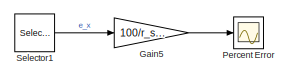
[diagram: root canvas - part 1/2, top right region]
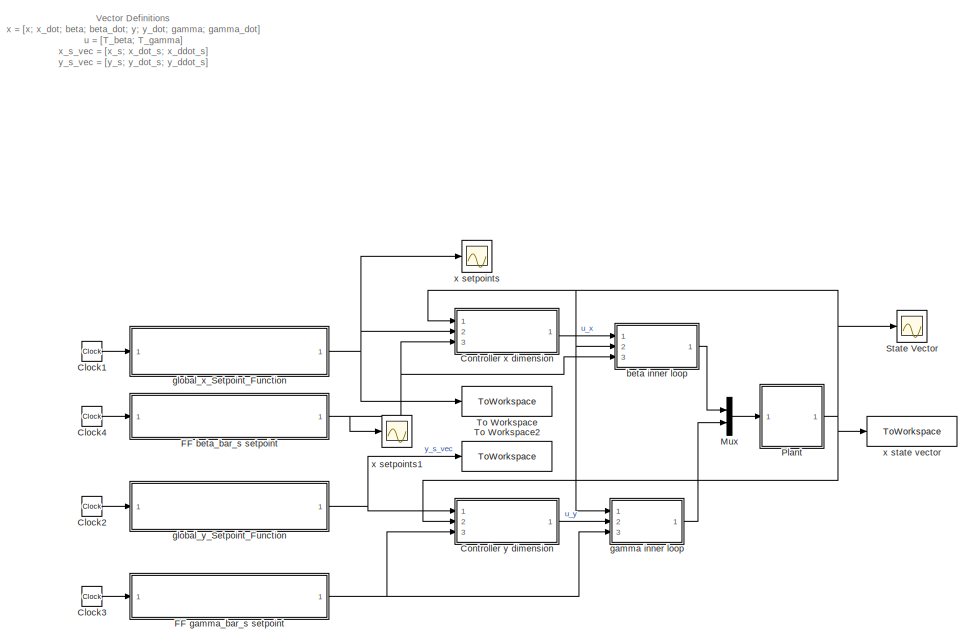
[diagram: root canvas - part 2/2, bottom left region]
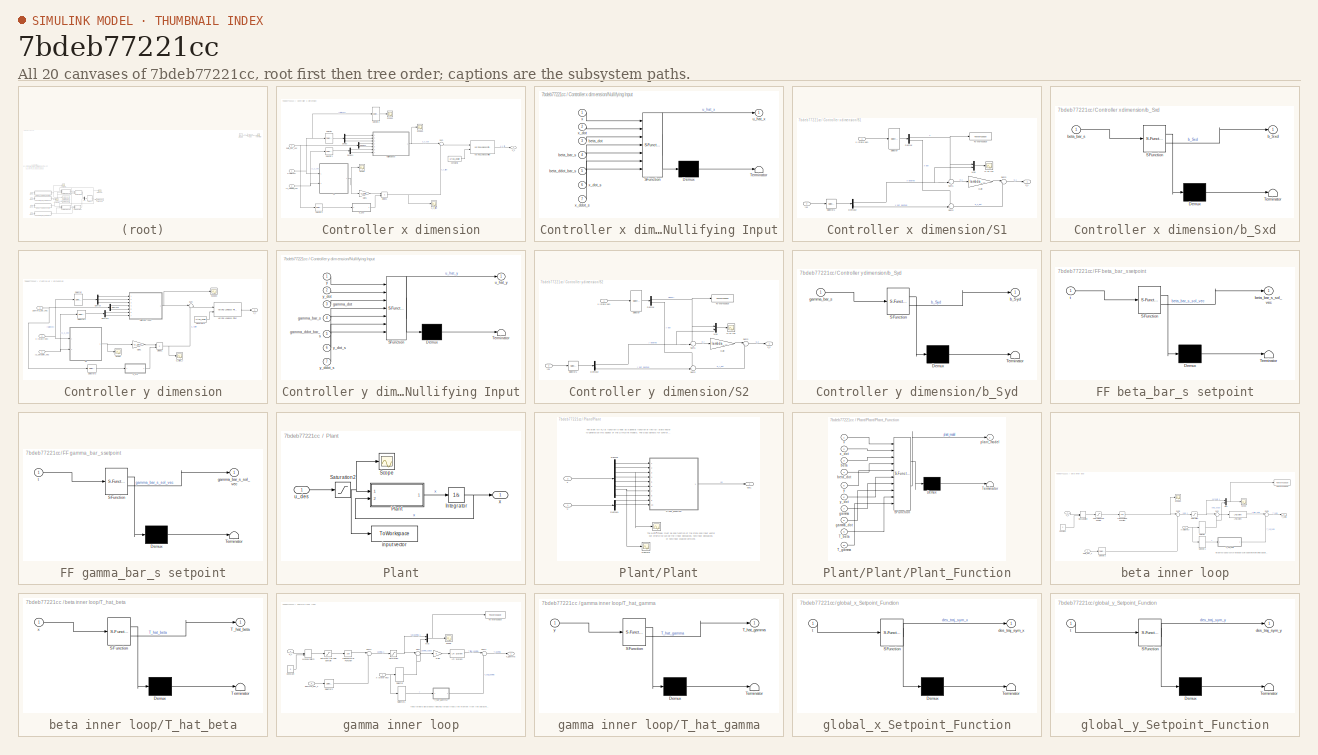
[diagram: thumbnail index - all 20 canvases of the model, root first then tree order]
MODEL slx_7bdeb77221cc
KIND model
CONFIG AbsTol = auto
CONFIG EnableMultiTasking = off
CONFIG FixedStep = auto
CONFIG MaxStep = auto
CONFIG MinStep = auto
CONFIG RelTol = 1e-9
CONFIG SampleTimeConstraint = Unconstrained
CONFIG SolverName = VariableStepAuto
CONFIG StartTime = 0.0
CONFIG StopTime = t_sim
BLOCK [Clock] Clock1
BLOCK [Clock] Clock2
BLOCK [Clock] Clock3
BLOCK [Clock] Clock4
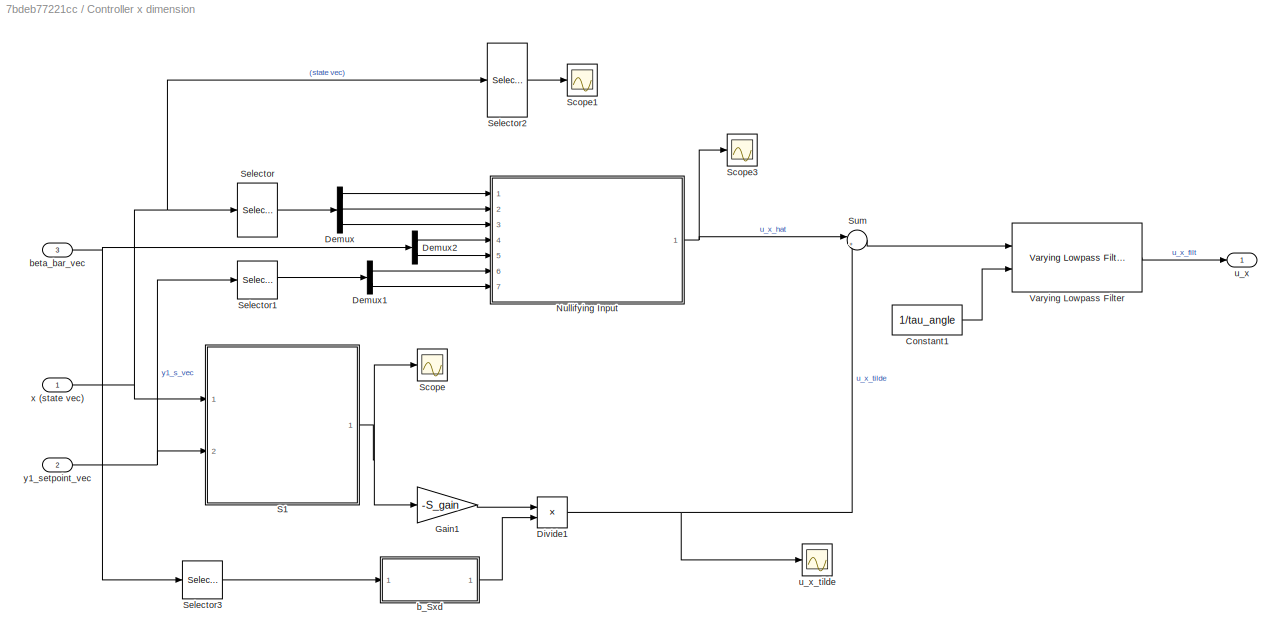
BLOCK [SubSystem] Controller x dimension
  Ports = [3, 1]
  RequestExecContextInheritance = off
BLOCK [Constant] Controller x dimension/Constant1
  Value = 1/tau_angle
BLOCK [Demux] Controller x dimension/Demux
  Outputs = 3
  Ports = [1, 3]
BLOCK [Demux] Controller x dimension/Demux1
  Outputs = 2
  Ports = [1, 2]
BLOCK [Demux] Controller x dimension/Demux2
  Outputs = 2
  Ports = [1, 2]
BLOCK [Product] Controller x dimension/Divide1
  Inputs = */
  Ports = [2, 1]
BLOCK [Gain] Controller x dimension/Gain1
  Gain = -S_gain
BLOCK [SubSystem] Controller x dimension/Nullifying Input
  ErrorFcn = Stateflow.Translate.translate
  PermitHierarchicalResolution = ExplicitOnly
  Ports = [7, 1]
  RequestExecContextInheritance = off
  SFBlockType = MATLAB Function
  TreatAsAtomicUnit = on
BLOCK [Demux] Controller x dimension/Nullifying Input/ Demux 
  Outputs = 1
  Ports = [1, 1]
BLOCK [S-Function] Controller x dimension/Nullifying Input/ SFunction 
  EnableBusSupport = on
  FunctionName = sf_sfun
  PortCounts = [7 2]
  Ports = [7, 2]
  SFcnIsStateOwnerBlock = off
  SFunctionDeploymentMode = off
  Tag = Stateflow S-Function 9
BLOCK [Terminator] Controller x dimension/Nullifying Input/ Terminator 
BLOCK [Inport] Controller x dimension/Nullifying Input/beta_bar_s
  Port = 4
BLOCK [Inport] Controller x dimension/Nullifying Input/beta_ddot_bar_s
  Port = 5
BLOCK [Inport] Controller x dimension/Nullifying Input/beta_dot
  Port = 3
BLOCK [Outport] Controller x dimension/Nullifying Input/u_hat_x
BLOCK [Inport] Controller x dimension/Nullifying Input/x
BLOCK [Inport] Controller x dimension/Nullifying Input/x_ddot_s
  Port = 7
BLOCK [Inport] Controller x dimension/Nullifying Input/x_dot
  Port = 2
BLOCK [Inport] Controller x dimension/Nullifying Input/x_dot_s
  Port = 6
BLOCK [SubSystem] Controller x dimension/S1
  Ports = [2, 1]
  RequestExecContextInheritance = off
BLOCK [Demux] Controller x dimension/S1/Demux
  Outputs = 2
  Ports = [1, 2]
BLOCK [Demux] Controller x dimension/S1/Demux2
  Outputs = 2
  Ports = [1, 2]
BLOCK [Gain] Controller x dimension/S1/Gain
  Gain = lambda_x_num
BLOCK [Mux] Controller x dimension/S1/Mux
  DisplayOption = bar
  Inputs = 2
  Ports = [2, 1]
BLOCK [Outport] Controller x dimension/S1/S_1
BLOCK [Selector] Controller x dimension/S1/Selector
  IndexOptions = Index vector (dialog)
  Indices = [1 2]
  InputPortWidth = 8
  OutputSizes = 1
  Ports = [1, 1]
BLOCK [Selector] Controller x dimension/S1/Selector1
  IndexOptions = Index vector (dialog)
  Indices = [1 2]
  InputPortWidth = 3
  OutputSizes = 1
  Ports = [1, 1]
BLOCK [Sum] Controller x dimension/S1/Sum1
  Inputs = -+|
  Ports = [2, 1]
BLOCK [Sum] Controller x dimension/S1/Sum2
  Inputs = -+|
  Ports = [2, 1]
BLOCK [Sum] Controller x dimension/S1/Sum3
  Inputs = |++
  Ports = [2, 1]
BLOCK [ToWorkspace] Controller x dimension/S1/To Workspace
  FixptAsFi = on
  MaxDataPoints = inf
  Ports = [1]
  SampleTime = -1
  VariableName = y1
BLOCK [Inport] Controller x dimension/S1/x (state vec)
BLOCK [Scope] Controller x dimension/S1/y1 vs y1s
  Floating = off
  NumInputPorts = 1
  Ports = [1]
  ScopeSpecificationString = Simulink.scopes.TimeScopeBlockCfg('CurrentConfiguration', extmgr.ConfigurationSet(extmgr.Configuration('Core','General UI',true),extmgr.Configuration('Core','Source UI',true),extmgr.Configuration('Sources','WiredSimulink',true,'DataLoggingVariableName','ScopeData1'),extmgr.Configuration('Visuals','Time Domain',true,'SerializedDisplays',{struct('MinYLimReal','-15.40053','MaxYLimReal','2.1788','YLab...<+1462ch>
BLOCK [Inport] Controller x dimension/S1/y1s
  Port = 2
BLOCK [Scope] Controller x dimension/Scope
  Floating = off
  NumInputPorts = 1
  Ports = [1]
  ScopeSpecificationString = Simulink.scopes.TimeScopeBlockCfg('CurrentConfiguration', extmgr.ConfigurationSet(extmgr.Configuration('Core','General UI',true),extmgr.Configuration('Core','Source UI',true),extmgr.Configuration('Sources','WiredSimulink',true,'DataLoggingVariableName','ScopeData2'),extmgr.Configuration('Visuals','Time Domain',true,'SerializedDisplays',{struct('MinYLimReal','-0.10473','MaxYLimReal','0.06587','YLab...<+1473ch>
BLOCK [Scope] Controller x dimension/Scope1
  Floating = off
  NumInputPorts = 1
  Ports = [1]
  ScopeSpecificationString = Simulink.scopes.TimeScopeBlockCfg('CurrentConfiguration', extmgr.ConfigurationSet(extmgr.Configuration('Core','General UI',true),extmgr.Configuration('Core','Source UI',true),extmgr.Configuration('Sources','WiredSimulink',true,'DataLoggingVariableName','ScopeData3'),extmgr.Configuration('Visuals','Time Domain',true,'SerializedDisplays',{struct('MinYLimReal','-0.83404','MaxYLimReal','0.41624','YLab...<+1392ch>
BLOCK [Scope] Controller x dimension/Scope3
  Floating = off
  NumInputPorts = 1
  Ports = [1]
  ScopeSpecificationString = Simulink.scopes.TimeScopeBlockCfg('CurrentConfiguration', extmgr.ConfigurationSet(extmgr.Configuration('Core','General UI',true),extmgr.Configuration('Core','Source UI',true),extmgr.Configuration('Sources','WiredSimulink',true,'DataLoggingVariableName','ScopeData1'),extmgr.Configuration('Visuals','Time Domain',true,'SerializedDisplays',{struct('MinYLimReal','-21.74408','MaxYLimReal','2.55951','YLa...<+1464ch>
BLOCK [Selector] Controller x dimension/Selector
  IndexOptions = Index vector (dialog)
  Indices = [1 2 4]
  InputPortWidth = 8
  OutputSizes = 1
  Ports = [1, 1]
BLOCK [Selector] Controller x dimension/Selector1
  IndexOptions = Index vector (dialog)
  Indices = [2 3]
  InputPortWidth = 3
  OutputSizes = 1
  Ports = [1, 1]
BLOCK [Selector] Controller x dimension/Selector2
  IndexOptions = Index vector (dialog)
  Indices = [3]
  InputPortWidth = 8
  OutputSizes = 1
  Ports = [1, 1]
BLOCK [Selector] Controller x dimension/Selector3
  IndexOptions = Index vector (dialog)
  Indices = [1]
  InputPortWidth = 2
  OutputSizes = 1
  Ports = [1, 1]
BLOCK [Sum] Controller x dimension/Sum
  Inputs = |++
  Ports = [2, 1]
BLOCK [Reference] Controller x dimension/Varying Lowpass Filter  REF=cstblocks/Linear Parameter Varying/Varying Lowpass Filter
  Ports = [2, 1]
  SourceBlock = cstblocks/Linear Parameter Varying/Varying Lowpass Filter
  SourceProductBaseCode = CT
  SourceType = Varying Lowpass Filter
BLOCK [SubSystem] Controller x dimension/b_Sxd
  ErrorFcn = Stateflow.Translate.translate
  PermitHierarchicalResolution = ExplicitOnly
  Ports = [1, 1]
  RequestExecContextInheritance = off
  SFBlockType = MATLAB Function
  TreatAsAtomicUnit = on
BLOCK [Demux] Controller x dimension/b_Sxd/ Demux 
  Outputs = 1
  Ports = [1, 1]
BLOCK [S-Function] Controller x dimension/b_Sxd/ SFunction 
  EnableBusSupport = on
  FunctionName = sf_sfun
  PortCounts = [1 2]
  Ports = [1, 2]
  SFcnIsStateOwnerBlock = off
  SFunctionDeploymentMode = off
  Tag = Stateflow S-Function 13
BLOCK [Terminator] Controller x dimension/b_Sxd/ Terminator 
BLOCK [Outport] Controller x dimension/b_Sxd/b_Sxd
BLOCK [Inport] Controller x dimension/b_Sxd/beta_bar_s
BLOCK [Inport] Controller x dimension/beta_bar_vec
  Port = 3
BLOCK [Outport] Controller x dimension/u_x
BLOCK [Scope] Controller x dimension/u_x_tilde
  Floating = off
  NumInputPorts = 1
  Ports = [1]
  ScopeSpecificationString = Simulink.scopes.TimeScopeBlockCfg('CurrentConfiguration', extmgr.ConfigurationSet(extmgr.Configuration('Core','General UI',true),extmgr.Configuration('Core','Source UI',true),extmgr.Configuration('Sources','WiredSimulink',true,'DataLoggingVariableName','ScopeData1'),extmgr.Configuration('Visuals','Time Domain',true,'SerializedDisplays',{struct('MinYLimReal','-0.01495','MaxYLimReal','0.0094','YLabe...<+1465ch>
BLOCK [Inport] Controller x dimension/x (state vec)
BLOCK [Inport] Controller x dimension/y1_setpoint_vec
  Port = 2
BLOCK [SubSystem] Controller y dimension
  NameLocation = top
  Ports = [3, 1]
  RequestExecContextInheritance = off
BLOCK [Constant] Controller y dimension/Constant1
  Value = 1/tau_angle
BLOCK [Demux] Controller y dimension/Demux
  Outputs = 3
  Ports = [1, 3]
BLOCK [Demux] Controller y dimension/Demux1
  Outputs = 2
  Ports = [1, 2]
BLOCK [Demux] Controller y dimension/Demux2
  Outputs = 2
  Ports = [1, 2]
BLOCK [Product] Controller y dimension/Divide1
  Inputs = */
  Ports = [2, 1]
BLOCK [Gain] Controller y dimension/Gain1
  Gain = -S_gain
BLOCK [SubSystem] Controller y dimension/Nullifying Input
  ErrorFcn = Stateflow.Translate.translate
  PermitHierarchicalResolution = ExplicitOnly
  Ports = [7, 1]
  RequestExecContextInheritance = off
  SFBlockType = MATLAB Function
  TreatAsAtomicUnit = on
BLOCK [Demux] Controller y dimension/Nullifying Input/ Demux 
  Outputs = 1
  Ports = [1, 1]
BLOCK [S-Function] Controller y dimension/Nullifying Input/ SFunction 
  EnableBusSupport = on
  FunctionName = sf_sfun
  PortCounts = [7 2]
  Ports = [7, 2]
  SFcnIsStateOwnerBlock = off
  SFunctionDeploymentMode = off
  Tag = Stateflow S-Function 4
BLOCK [Terminator] Controller y dimension/Nullifying Input/ Terminator 
BLOCK [Inport] Controller y dimension/Nullifying Input/gamma_bar_s
  Port = 4
BLOCK [Inport] Controller y dimension/Nullifying Input/gamma_ddot_bar_s
  Port = 5
BLOCK [Inport] Controller y dimension/Nullifying Input/gamma_dot
  Port = 3
BLOCK [Outport] Controller y dimension/Nullifying Input/u_hat_y
BLOCK [Inport] Controller y dimension/Nullifying Input/y
BLOCK [Inport] Controller y dimension/Nullifying Input/y_ddot_s
  Port = 7
BLOCK [Inport] Controller y dimension/Nullifying Input/y_dot
  Port = 2
BLOCK [Inport] Controller y dimension/Nullifying Input/y_dot_s
  Port = 6
BLOCK [SubSystem] Controller y dimension/S2
  Ports = [2, 1]
  RequestExecContextInheritance = off
BLOCK [Demux] Controller y dimension/S2/Demux
  Outputs = 2
  Ports = [1, 2]
BLOCK [Demux] Controller y dimension/S2/Demux2
  Outputs = 2
  Ports = [1, 2]
BLOCK [Gain] Controller y dimension/S2/Gain
  Gain = lambda_y_num
BLOCK [Mux] Controller y dimension/S2/Mux
  DisplayOption = bar
  Inputs = 2
  Ports = [2, 1]
BLOCK [Outport] Controller y dimension/S2/S_2
BLOCK [Selector] Controller y dimension/S2/Selector
  IndexOptions = Index vector (dialog)
  Indices = [5 6]
  InputPortWidth = 8
  OutputSizes = 1
  Ports = [1, 1]
BLOCK [Selector] Controller y dimension/S2/Selector1
  IndexOptions = Index vector (dialog)
  Indices = [1 2]
  InputPortWidth = 3
  OutputSizes = 1
  Ports = [1, 1]
BLOCK [Sum] Controller y dimension/S2/Sum1
  Inputs = -+|
  Ports = [2, 1]
BLOCK [Sum] Controller y dimension/S2/Sum2
  Inputs = -+|
  Ports = [2, 1]
BLOCK [Sum] Controller y dimension/S2/Sum3
  Inputs = |++
  Ports = [2, 1]
BLOCK [ToWorkspace] Controller y dimension/S2/To Workspace
  FixptAsFi = on
  MaxDataPoints = inf
  Ports = [1]
  SampleTime = -1
  VariableName = y2
BLOCK [Inport] Controller y dimension/S2/x (state vec)
BLOCK [Scope] Controller y dimension/S2/y2 vs y2s
  Floating = off
  NumInputPorts = 1
  Ports = [1]
  ScopeSpecificationString = Simulink.scopes.TimeScopeBlockCfg('CurrentConfiguration', extmgr.ConfigurationSet(extmgr.Configuration('Core','General UI',true),extmgr.Configuration('Core','Source UI',true),extmgr.Configuration('Sources','WiredSimulink',true,'DataLoggingVariableName','ScopeData6'),extmgr.Configuration('Visuals','Time Domain',true,'SerializedDisplays',{struct('MinYLimReal','-0.13872','MaxYLimReal','0.17887','YLab...<+1423ch>
BLOCK [Inport] Controller y dimension/S2/y2s
  Port = 2
BLOCK [Scope] Controller y dimension/Scope
  Floating = off
  NumInputPorts = 1
  Ports = [1]
  ScopeSpecificationString = Simulink.scopes.TimeScopeBlockCfg('CurrentConfiguration', extmgr.ConfigurationSet(extmgr.Configuration('Core','General UI',true),extmgr.Configuration('Core','Source UI',true),extmgr.Configuration('Sources','WiredSimulink',true,'DataLoggingVariableName','ScopeData1'),extmgr.Configuration('Visuals','Time Domain',true,'SerializedDisplays',{struct('MinYLimReal','-0.5677','MaxYLimReal','2.96406','YLabe...<+1432ch>
BLOCK [Scope] Controller y dimension/Scope3
  Floating = off
  NumInputPorts = 1
  Ports = [1]
  ScopeSpecificationString = Simulink.scopes.TimeScopeBlockCfg('CurrentConfiguration', extmgr.ConfigurationSet(extmgr.Configuration('Core','General UI',true),extmgr.Configuration('Core','Source UI',true),extmgr.Configuration('Sources','WiredSimulink',true,'DataLoggingVariableName','ScopeData7'),extmgr.Configuration('Visuals','Time Domain',true,'SerializedDisplays',{struct('MinYLimReal','-92.47685','MaxYLimReal','62.83745','YL...<+1425ch>
BLOCK [Selector] Controller y dimension/Selector
  IndexOptions = Index vector (dialog)
  Indices = [5 6 8]
  InputPortWidth = 8
  OutputSizes = 1
  Ports = [1, 1]
BLOCK [Selector] Controller y dimension/Selector1
  IndexOptions = Index vector (dialog)
  Indices = [2 3]
  InputPortWidth = 3
  OutputSizes = 1
  Ports = [1, 1]
BLOCK [Selector] Controller y dimension/Selector3
  IndexOptions = Index vector (dialog)
  Indices = [1]
  InputPortWidth = 2
  OutputSizes = 1
  Ports = [1, 1]
BLOCK [Sum] Controller y dimension/Sum
  Inputs = |++
  Ports = [2, 1]
BLOCK [Reference] Controller y dimension/Varying Lowpass Filter  REF=cstblocks/Linear Parameter Varying/Varying Lowpass Filter
  Ports = [2, 1]
  SourceBlock = cstblocks/Linear Parameter Varying/Varying Lowpass Filter
  SourceProductBaseCode = CT
  SourceType = Varying Lowpass Filter
BLOCK [SubSystem] Controller y dimension/b_Syd
  ErrorFcn = Stateflow.Translate.translate
  PermitHierarchicalResolution = ExplicitOnly
  Ports = [1, 1]
  RequestExecContextInheritance = off
  SFBlockType = MATLAB Function
  TreatAsAtomicUnit = on
BLOCK [Demux] Controller y dimension/b_Syd/ Demux 
  Outputs = 1
  Ports = [1, 1]
BLOCK [S-Function] Controller y dimension/b_Syd/ SFunction 
  EnableBusSupport = on
  FunctionName = sf_sfun
  PortCounts = [1 2]
  Ports = [1, 2]
  SFcnIsStateOwnerBlock = off
  SFunctionDeploymentMode = off
  Tag = Stateflow S-Function 7
BLOCK [Terminator] Controller y dimension/b_Syd/ Terminator 
BLOCK [Outport] Controller y dimension/b_Syd/b_Syd
BLOCK [Inport] Controller y dimension/b_Syd/gamma_bar_s
BLOCK [Inport] Controller y dimension/gamma_bar_vec
  Port = 3
BLOCK [Scope] Controller y dimension/u_tilde_y
  Floating = off
  NumInputPorts = 1
  Ports = [1]
  ScopeSpecificationString = Simulink.scopes.TimeScopeBlockCfg('CurrentConfiguration', extmgr.ConfigurationSet(extmgr.Configuration('Core','General UI',true),extmgr.Configuration('Core','Source UI',true),extmgr.Configuration('Sources','WiredSimulink',true,'DataLoggingVariableName','ScopeData2'),extmgr.Configuration('Visuals','Time Domain',true,'SerializedDisplays',{struct('MinYLimReal','-60672408068297216.00000','MaxYLimReal'...<+1542ch>
BLOCK [Outport] Controller y dimension/u_y
BLOCK [Inport] Controller y dimension/x (state vec)
  Port = 2
BLOCK [Inport] Controller y dimension/y2_setpoint_vec
BLOCK [SubSystem] FF beta_bar_s setpoint
  ErrorFcn = Stateflow.Translate.translate
  PermitHierarchicalResolution = ExplicitOnly
  Ports = [1, 1]
  RequestExecContextInheritance = off
  SFBlockType = MATLAB Function
  TreatAsAtomicUnit = on
BLOCK [Demux] FF beta_bar_s setpoint/ Demux 
  Outputs = 1
  Ports = [1, 1]
BLOCK [S-Function] FF beta_bar_s setpoint/ SFunction 
  EnableBusSupport = on
  FunctionName = sf_sfun
  PortCounts = [1 2]
  Ports = [1, 2]
  SFcnIsStateOwnerBlock = off
  SFunctionDeploymentMode = off
  Tag = Stateflow S-Function 8
BLOCK [Terminator] FF beta_bar_s setpoint/ Terminator 
BLOCK [Outport] FF beta_bar_s setpoint/beta_bar_s_sol_vec
BLOCK [Inport] FF beta_bar_s setpoint/t
BLOCK [SubSystem] FF gamma_bar_s setpoint
  ErrorFcn = Stateflow.Translate.translate
  PermitHierarchicalResolution = ExplicitOnly
  Ports = [1, 1]
  RequestExecContextInheritance = off
  SFBlockType = MATLAB Function
  TreatAsAtomicUnit = on
BLOCK [Demux] FF gamma_bar_s setpoint/ Demux 
  Outputs = 1
  Ports = [1, 1]
BLOCK [S-Function] FF gamma_bar_s setpoint/ SFunction 
  EnableBusSupport = on
  FunctionName = sf_sfun
  PortCounts = [1 2]
  Ports = [1, 2]
  SFcnIsStateOwnerBlock = off
  SFunctionDeploymentMode = off
  Tag = Stateflow S-Function 10
BLOCK [Terminator] FF gamma_bar_s setpoint/ Terminator 
BLOCK [Outport] FF gamma_bar_s setpoint/gamma_bar_s_sol_vec
BLOCK [Inport] FF gamma_bar_s setpoint/t
BLOCK [Gain] Gain5
  Commented = on
  Gain = 100/r_sim
BLOCK [Mux] Mux
  DisplayOption = bar
  Inputs = 2
  Ports = [2, 1]
BLOCK [Scope] Percent Error
  Commented = on
  Floating = off
  NumInputPorts = 1
  Ports = [1]
  ScopeSpecificationString = Simulink.scopes.TimeScopeBlockCfg('CurrentConfiguration', extmgr.ConfigurationSet(extmgr.Configuration('Core','General UI',true),extmgr.Configuration('Core','Source UI',true),extmgr.Configuration('Sources','WiredSimulink',true,'DataLoggingVariableName','ScopeData2'),extmgr.Configuration('Visuals','Time Domain',true,'SerializedDisplays',{struct('MinYLimReal','-1.29449','MaxYLimReal','1.86814','YLab...<+1556ch>
BLOCK [SubSystem] Plant
  Ports = [1, 1]
  RequestExecContextInheritance = off
BLOCK [Integrator] Plant/Integrator
  InitialCondition = x_0
  Ports = [1, 1]
BLOCK [SubSystem] Plant/Plant
  Ports = [2, 1]
  RequestExecContextInheritance = off
BLOCK [Scope] Plant/Plant/Beta
  Floating = off
  NumInputPorts = 1
  Ports = [1]
  ScopeSpecificationString = Simulink.scopes.TimeScopeBlockCfg('CurrentConfiguration', extmgr.ConfigurationSet(extmgr.Configuration('Core','General UI',true),extmgr.Configuration('Core','Source UI',true),extmgr.Configuration('Sources','WiredSimulink',true,'DataLoggingVariableName','ScopeData2'),extmgr.Configuration('Visuals','Time Domain',true,'SerializedDisplays',{struct('MinYLimReal','-0.09593','MaxYLimReal','0.09557','YLab...<+1391ch>
BLOCK [Demux] Plant/Plant/Demux
  Outputs = 8
  Ports = [1, 8]
BLOCK [Demux] Plant/Plant/Demux1
  Outputs = 2
  Ports = [1, 2]
BLOCK [Scope] Plant/Plant/Gamma
  Floating = off
  NumInputPorts = 1
  Ports = [1]
  ScopeSpecificationString = Simulink.scopes.TimeScopeBlockCfg('CurrentConfiguration', extmgr.ConfigurationSet(extmgr.Configuration('Core','General UI',true),extmgr.Configuration('Core','Source UI',true),extmgr.Configuration('Sources','WiredSimulink',true,'DataLoggingVariableName','ScopeData1'),extmgr.Configuration('Visuals','Time Domain',true),extmgr.Configuration('Tools','Plot Navigation',true),extmgr.Configuration('Tools',...<+40ch>
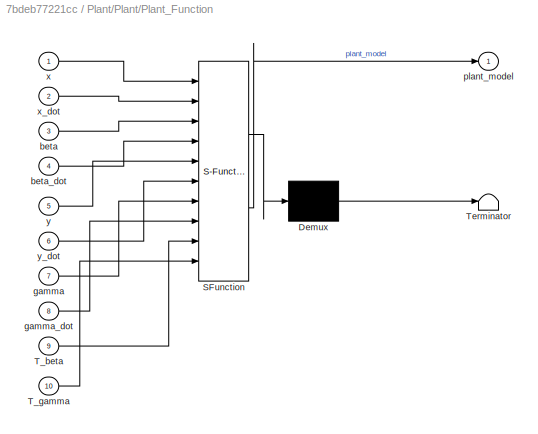
BLOCK [SubSystem] Plant/Plant/Plant_Function
  ErrorFcn = Stateflow.Translate.translate
  PermitHierarchicalResolution = ExplicitOnly
  Ports = [10, 1]
  RequestExecContextInheritance = off
  SFBlockType = MATLAB Function
  TreatAsAtomicUnit = on
BLOCK [Demux] Plant/Plant/Plant_Function/ Demux 
  Outputs = 1
  Ports = [1, 1]
BLOCK [S-Function] Plant/Plant/Plant_Function/ SFunction 
  EnableBusSupport = on
  FunctionName = sf_sfun
  PortCounts = [10 2]
  Ports = [10, 2]
  SFcnIsStateOwnerBlock = off
  SFunctionDeploymentMode = off
  Tag = Stateflow S-Function 1
BLOCK [Terminator] Plant/Plant/Plant_Function/ Terminator 
BLOCK [Inport] Plant/Plant/Plant_Function/T_beta
  Port = 9
BLOCK [Inport] Plant/Plant/Plant_Function/T_gamma
  Port = 10
BLOCK [Inport] Plant/Plant/Plant_Function/beta
  Port = 3
BLOCK [Inport] Plant/Plant/Plant_Function/beta_dot
  Port = 4
BLOCK [Inport] Plant/Plant/Plant_Function/gamma
  Port = 7
BLOCK [Inport] Plant/Plant/Plant_Function/gamma_dot
  Port = 8
BLOCK [Outport] Plant/Plant/Plant_Function/plant_model
BLOCK [Inport] Plant/Plant/Plant_Function/x
BLOCK [Inport] Plant/Plant/Plant_Function/x_dot
  Port = 2
BLOCK [Inport] Plant/Plant/Plant_Function/y
  Port = 5
BLOCK [Inport] Plant/Plant/Plant_Function/y_dot
  Port = 6
BLOCK [Outport] Plant/Plant/out1
BLOCK [Inport] Plant/Plant/u
BLOCK [Inport] Plant/Plant/x
  Port = 2
BLOCK [Saturate] Plant/Saturation2
  LowerLimit = -Tmax
  UpperLimit = Tmax
  ZeroCross = off
BLOCK [Scope] Plant/Scope
  Floating = off
  NumInputPorts = 1
  Ports = [1]
  ScopeSpecificationString = Simulink.scopes.TimeScopeBlockCfg('CurrentConfiguration', extmgr.ConfigurationSet(extmgr.Configuration('Core','General UI',true),extmgr.Configuration('Core','Source UI',true),extmgr.Configuration('Sources','WiredSimulink',true,'DataLoggingVariableName','ScopeData4'),extmgr.Configuration('Visuals','Time Domain',true,'SerializedDisplays',{struct('MinYLimReal','-1.875','MaxYLimReal','1.875','YLabelRe...<+1700ch>
BLOCK [ToWorkspace] Plant/input vector
  FixptAsFi = on
  MaxDataPoints = inf
  Ports = [1]
  SampleTime = -1
  VariableName = u
BLOCK [Inport] Plant/u_des
BLOCK [Outport] Plant/x
BLOCK [Selector] Selector1
  Commented = on
  IndexOptions = Index vector (dialog)
  Indices = [1]
  InputPortWidth = 5
  OutputSizes = 1
  Ports = [1, 1]
BLOCK [Scope] State Vector
  Floating = off
  NumInputPorts = 1
  Ports = [1]
  ScopeSpecificationString = Simulink.scopes.TimeScopeBlockCfg('CurrentConfiguration', extmgr.ConfigurationSet(extmgr.Configuration('Core','General UI',true),extmgr.Configuration('Core','Source UI',true),extmgr.Configuration('Sources','WiredSimulink',true,'DataLoggingVariableName','ScopeData3'),extmgr.Configuration('Visuals','Time Domain',true,'SerializedDisplays',{struct('MinYLimReal','-7.85214','MaxYLimReal','2.44044','YLab...<+1627ch>
BLOCK [ToWorkspace] To Workspace
  FixptAsFi = on
  MaxDataPoints = inf
  Ports = [1]
  SampleTime = -1
  VariableName = y1_s_vec
BLOCK [ToWorkspace] To Workspace2
  FixptAsFi = on
  MaxDataPoints = inf
  Ports = [1]
  SampleTime = -1
  VariableName = y2_s_vec
BLOCK [SubSystem] beta inner loop
  Ports = [3, 1]
  RequestExecContextInheritance = off
BLOCK [Constant] beta inner loop/Constant
  Value = 0
BLOCK [Reference] beta inner loop/LTI System  REF=cstblocks/LTI System
  Ports = [1, 1]
  SourceBlock = cstblocks/LTI System
  SourceProductBaseCode = CT
  SourceType = LTI Block
BLOCK [ManualSwitch] beta inner loop/Manual Switch
BLOCK [Mux] beta inner loop/Mux
  DisplayOption = bar
  Inputs = 2
  Ports = [2, 1]
BLOCK [Saturate] beta inner loop/Saturate the asin domain
  LowerLimit = -1
  UpperLimit = 1
BLOCK [Saturate] beta inner loop/Saturation
  LowerLimit = -Angle_max
  UpperLimit = Angle_max
BLOCK [Scope] beta inner loop/Scope
  Floating = off
  NumInputPorts = 1
  Ports = [1]
  ScopeSpecificationString = Simulink.scopes.TimeScopeBlockCfg('CurrentConfiguration', extmgr.ConfigurationSet(extmgr.Configuration('Core','General UI',true),extmgr.Configuration('Core','Source UI',true),extmgr.Configuration('Sources','WiredSimulink',true,'DataLoggingVariableName','ScopeData1'),extmgr.Configuration('Visuals','Time Domain',true,'SerializedDisplays',{struct('MinYLimReal','-0.06327','MaxYLimReal','0.06327','YLab...<+1506ch>
BLOCK [Scope] beta inner loop/Scope2
  Floating = off
  NumInputPorts = 1
  Ports = [1]
  ScopeSpecificationString = Simulink.scopes.TimeScopeBlockCfg('CurrentConfiguration', extmgr.ConfigurationSet(extmgr.Configuration('Core','General UI',true),extmgr.Configuration('Core','Source UI',true),extmgr.Configuration('Sources','WiredSimulink',true,'DataLoggingVariableName','ScopeData2'),extmgr.Configuration('Visuals','Time Domain',true,'SerializedDisplays',{struct('MinYLimReal','-0.11164','MaxYLimReal','0.11164','YLab...<+1461ch>
BLOCK [Selector] beta inner loop/Selector
  IndexOptions = Index vector (dialog)
  Indices = [3]
  InputPortWidth = 8
  OutputSizes = 1
  Ports = [1, 1]
BLOCK [Selector] beta inner loop/Selector1
  IndexOptions = Index vector (dialog)
  Indices = [1]
  InputPortWidth = 8
  OutputSizes = 1
  Ports = [1, 1]
BLOCK [Selector] beta inner loop/Selector2
  IndexOptions = Index vector (dialog)
  Indices = [1 ]
  InputPortWidth = 2
  OutputSizes = 1
  Ports = [1, 1]
BLOCK [Sum] beta inner loop/Sum
  Inputs = |+-
  Ports = [2, 1]
BLOCK [Sum] beta inner loop/Sum1
  Inputs = |++
  Ports = [2, 1]
BLOCK [Sum] beta inner loop/Sum2
  Inputs = |++
  Ports = [2, 1]
BLOCK [Outport] beta inner loop/T_beta
BLOCK [SubSystem] beta inner loop/T_hat_beta
  ErrorFcn = Stateflow.Translate.translate
  PermitHierarchicalResolution = ExplicitOnly
  Ports = [1, 1]
  RequestExecContextInheritance = off
  SFBlockType = MATLAB Function
  TreatAsAtomicUnit = on
BLOCK [Demux] beta inner loop/T_hat_beta/ Demux 
  Outputs = 1
  Ports = [1, 1]
BLOCK [S-Function] beta inner loop/T_hat_beta/ SFunction 
  EnableBusSupport = on
  FunctionName = sf_sfun
  PortCounts = [1 2]
  Ports = [1, 2]
  SFcnIsStateOwnerBlock = off
  SFunctionDeploymentMode = off
  Tag = Stateflow S-Function 5
BLOCK [Terminator] beta inner loop/T_hat_beta/ Terminator 
BLOCK [Outport] beta inner loop/T_hat_beta/T_hat_beta
BLOCK [Inport] beta inner loop/T_hat_beta/x
BLOCK [ToWorkspace] beta inner loop/To Workspace
  FixptAsFi = on
  MaxDataPoints = inf
  Ports = [1]
  SampleTime = -1
  VariableName = ILC_beta
BLOCK [Trigonometry] beta inner loop/Trigonometric Function
  Operator = asin
  Ports = [1, 1]
BLOCK [Inport] beta inner loop/beta_bar_s
  Port = 3
BLOCK [Inport] beta inner loop/u_x
BLOCK [Inport] beta inner loop/x (state vec)
  Port = 2
BLOCK [SubSystem] gamma inner loop
  Ports = [3, 1]
  RequestExecContextInheritance = off
BLOCK [Constant] gamma inner loop/Constant
  Value = 0
BLOCK [Gain] gamma inner loop/Gain
BLOCK [Reference] gamma inner loop/LTI System  REF=cstblocks/LTI System
  Ports = [1, 1]
  SourceBlock = cstblocks/LTI System
  SourceProductBaseCode = CT
  SourceType = LTI Block
BLOCK [ManualSwitch] gamma inner loop/Manual Switch
BLOCK [Mux] gamma inner loop/Mux
  DisplayOption = bar
  Inputs = 2
  Ports = [2, 1]
BLOCK [Saturate] gamma inner loop/Saturate the asin domain
  LowerLimit = -1
  UpperLimit = 1
BLOCK [Saturate] gamma inner loop/Saturation
  LowerLimit = -Angle_max
  UpperLimit = Angle_max
BLOCK [Scope] gamma inner loop/Scope
  Floating = off
  NumInputPorts = 1
  Ports = [1]
  ScopeSpecificationString = Simulink.scopes.TimeScopeBlockCfg('CurrentConfiguration', extmgr.ConfigurationSet(extmgr.Configuration('Core','General UI',true),extmgr.Configuration('Core','Source UI',true),extmgr.Configuration('Sources','WiredSimulink',true,'DataLoggingVariableName','ScopeData1'),extmgr.Configuration('Visuals','Time Domain',true,'SerializedDisplays',{struct('MinYLimReal','-0.12304','MaxYLimReal','0.12303','YLab...<+1459ch>
BLOCK [Selector] gamma inner loop/Selector
  IndexOptions = Index vector (dialog)
  Indices = [7]
  InputPortWidth = 8
  OutputSizes = 1
  Ports = [1, 1]
BLOCK [Selector] gamma inner loop/Selector1
  IndexOptions = Index vector (dialog)
  Indices = [5]
  InputPortWidth = 8
  OutputSizes = 1
  Ports = [1, 1]
BLOCK [Selector] gamma inner loop/Selector2
  IndexOptions = Index vector (dialog)
  Indices = [1 ]
  InputPortWidth = 2
  OutputSizes = 1
  Ports = [1, 1]
BLOCK [Sum] gamma inner loop/Sum
  Inputs = |+-
  Ports = [2, 1]
BLOCK [Sum] gamma inner loop/Sum1
  Inputs = |++
  Ports = [2, 1]
BLOCK [Sum] gamma inner loop/Sum2
  Inputs = |++
  Ports = [2, 1]
BLOCK [Outport] gamma inner loop/T_gamma
BLOCK [SubSystem] gamma inner loop/T_hat_gamma
  ErrorFcn = Stateflow.Translate.translate
  PermitHierarchicalResolution = ExplicitOnly
  Ports = [1, 1]
  RequestExecContextInheritance = off
  SFBlockType = MATLAB Function
  TreatAsAtomicUnit = on
BLOCK [Demux] gamma inner loop/T_hat_gamma/ Demux 
  Outputs = 1
  Ports = [1, 1]
BLOCK [S-Function] gamma inner loop/T_hat_gamma/ SFunction 
  EnableBusSupport = on
  FunctionName = sf_sfun
  PortCounts = [1 2]
  Ports = [1, 2]
  SFcnIsStateOwnerBlock = off
  SFunctionDeploymentMode = off
  Tag = Stateflow S-Function 6
BLOCK [Terminator] gamma inner loop/T_hat_gamma/ Terminator 
BLOCK [Outport] gamma inner loop/T_hat_gamma/T_hat_gamma
BLOCK [Inport] gamma inner loop/T_hat_gamma/y
BLOCK [ToWorkspace] gamma inner loop/To Workspace
  FixptAsFi = on
  MaxDataPoints = inf
  Ports = [1]
  SampleTime = -1
  VariableName = ILC_gamma
BLOCK [Trigonometry] gamma inner loop/Trigonometric Function
  Operator = asin
  Ports = [1, 1]
BLOCK [Inport] gamma inner loop/gamma_bar_s
  Port = 3
BLOCK [Inport] gamma inner loop/u_y
  Port = 2
BLOCK [Inport] gamma inner loop/x (state vec)
BLOCK [SubSystem] global_x_Setpoint_Function
  ErrorFcn = Stateflow.Translate.translate
  PermitHierarchicalResolution = ExplicitOnly
  Ports = [1, 1]
  RequestExecContextInheritance = off
  SFBlockType = MATLAB Function
  TreatAsAtomicUnit = on
BLOCK [Demux] global_x_Setpoint_Function/ Demux 
  Outputs = 1
  Ports = [1, 1]
BLOCK [S-Function] global_x_Setpoint_Function/ SFunction 
  EnableBusSupport = on
  FunctionName = sf_sfun
  PortCounts = [1 2]
  Ports = [1, 2]
  SFcnIsStateOwnerBlock = off
  SFunctionDeploymentMode = off
  Tag = Stateflow S-Function 2
BLOCK [Terminator] global_x_Setpoint_Function/ Terminator 
BLOCK [Outport] global_x_Setpoint_Function/des_traj_sym_x
BLOCK [Inport] global_x_Setpoint_Function/t
BLOCK [SubSystem] global_y_Setpoint_Function
  ErrorFcn = Stateflow.Translate.translate
  PermitHierarchicalResolution = ExplicitOnly
  Ports = [1, 1]
  RequestExecContextInheritance = off
  SFBlockType = MATLAB Function
  TreatAsAtomicUnit = on
BLOCK [Demux] global_y_Setpoint_Function/ Demux 
  Outputs = 1
  Ports = [1, 1]
BLOCK [S-Function] global_y_Setpoint_Function/ SFunction 
  EnableBusSupport = on
  FunctionName = sf_sfun
  PortCounts = [1 2]
  Ports = [1, 2]
  SFcnIsStateOwnerBlock = off
  SFunctionDeploymentMode = off
  Tag = Stateflow S-Function 3
BLOCK [Terminator] global_y_Setpoint_Function/ Terminator 
BLOCK [Outport] global_y_Setpoint_Function/des_traj_sym_y
BLOCK [Inport] global_y_Setpoint_Function/t
BLOCK [Scope] x setpoints
  Floating = off
  NumInputPorts = 1
  Ports = [1]
  ScopeSpecificationString = Simulink.scopes.TimeScopeBlockCfg('CurrentConfiguration', extmgr.ConfigurationSet(extmgr.Configuration('Core','General UI',true),extmgr.Configuration('Core','Source UI',true),extmgr.Configuration('Sources','WiredSimulink',true,'DataLoggingVariableName','ScopeData5'),extmgr.Configuration('Visuals','Time Domain',true,'SerializedDisplays',{struct('MinYLimReal','-0.68539','MaxYLimReal','0.68539','YLab...<+1641ch>
BLOCK [Scope] x setpoints1
  Floating = off
  NumInputPorts = 1
  Ports = [1]
  ScopeSpecificationString = Simulink.scopes.TimeScopeBlockCfg('CurrentConfiguration', extmgr.ConfigurationSet(extmgr.Configuration('Core','General UI',true),extmgr.Configuration('Core','Source UI',true),extmgr.Configuration('Sources','WiredSimulink',true,'DataLoggingVariableName','ScopeData1'),extmgr.Configuration('Visuals','Time Domain',true,'SerializedDisplays',{struct('MinYLimReal','-0.21944','MaxYLimReal','0.21945','YLab...<+1641ch>
BLOCK [ToWorkspace] x state vector
  FixptAsFi = on
  MaxDataPoints = inf
  Ports = [1]
  SampleTime = -1
  VariableName = x
ANNOTATION (root): Vector Definitions x = [x; x_dot; beta; beta_dot; y; y_dot; gamma; gamma_dot] u = [T_beta; T_gamma] x_s_vec = [x_s; x_dot_s; x_ddot_s] y_s_vec = [y_s; y_dot_s; y_ddot_s]
ANNOTATION Plant/Plant: The plant MATLAB function is kept as a general function of the full state vector to generalize this aspect of the Simulink models. The class objects for controllers must define this function in terms of all possible inputs. It is ok for certain inputs to be unused.
ANNOTATION Plant/Plant: The plant model must be and function of the state and input vector but otherwise can be the linear decoupled, nonlinear decoupled, or nonlinear coupled versions
ANNOTATION beta inner loop: feed forward disturbance rejecting torque treats the moment from the ball acting on the plate as a disturbance
ANNOTATION gamma inner loop: feed forward disturbance rejecting torque treats the moment from the ball acting on the plate as a disturbance
LINE Clock1:1 -> global_x_Setpoint_Function:1
LINE Clock2:1 -> global_y_Setpoint_Function:1
LINE Clock3:1 -> FF gamma_bar_s setpoint:1
LINE Clock4:1 -> FF beta_bar_s setpoint:1
LINE Controller x dimension/Constant1:1 -> Controller x dimension/Varying Lowpass Filter:2
LINE Controller x dimension/Demux1:1 -> Controller x dimension/Nullifying Input:6
LINE Controller x dimension/Demux1:2 -> Controller x dimension/Nullifying Input:7
LINE Controller x dimension/Demux2:1 -> Controller x dimension/Nullifying Input:4
LINE Controller x dimension/Demux2:2 -> Controller x dimension/Nullifying Input:5
LINE Controller x dimension/Demux:1 -> Controller x dimension/Nullifying Input:1
LINE Controller x dimension/Demux:2 -> Controller x dimension/Nullifying Input:2
LINE Controller x dimension/Demux:3 -> Controller x dimension/Nullifying Input:3
NET Controller x dimension/Divide1:1 -> Controller x dimension/Sum:2, Controller x dimension/u_x_tilde:1
LINE Controller x dimension/Gain1:1 -> Controller x dimension/Divide1:1
NET Controller x dimension/Nullifying Input:1 -> Controller x dimension/Scope3:1, Controller x dimension/Sum:1
NET Controller x dimension/S1/Demux2:1 -> Controller x dimension/S1/Mux:2, Controller x dimension/S1/Sum1:2
LINE Controller x dimension/S1/Demux2:2 -> Controller x dimension/S1/Sum2:2
NET Controller x dimension/S1/Demux:1 -> Controller x dimension/S1/Mux:1, Controller x dimension/S1/Sum1:1, Controller x dimension/S1/To Workspace:1
LINE Controller x dimension/S1/Demux:2 -> Controller x dimension/S1/Sum2:1
LINE Controller x dimension/S1/Gain:1 -> Controller x dimension/S1/Sum3:1
LINE Controller x dimension/S1/Mux:1 -> Controller x dimension/S1/y1 vs y1s:1
LINE Controller x dimension/S1/Selector1:1 -> Controller x dimension/S1/Demux2:1
LINE Controller x dimension/S1/Selector:1 -> Controller x dimension/S1/Demux:1
LINE Controller x dimension/S1/Sum1:1 -> Controller x dimension/S1/Gain:1
LINE Controller x dimension/S1/Sum2:1 -> Controller x dimension/S1/Sum3:2
LINE Controller x dimension/S1/Sum3:1 -> Controller x dimension/S1/S_1:1
LINE Controller x dimension/S1/x (state vec):1 -> Controller x dimension/S1/Selector:1
LINE Controller x dimension/S1/y1s:1 -> Controller x dimension/S1/Selector1:1
NET Controller x dimension/S1:1 -> Controller x dimension/Gain1:1, Controller x dimension/Scope:1
LINE Controller x dimension/Selector1:1 -> Controller x dimension/Demux1:1
LINE Controller x dimension/Selector2:1 -> Controller x dimension/Scope1:1
LINE Controller x dimension/Selector3:1 -> Controller x dimension/b_Sxd:1
LINE Controller x dimension/Selector:1 -> Controller x dimension/Demux:1
LINE Controller x dimension/Sum:1 -> Controller x dimension/Varying Lowpass Filter:1
LINE Controller x dimension/Varying Lowpass Filter:1 -> Controller x dimension/u_x:1
LINE Controller x dimension/b_Sxd:1 -> Controller x dimension/Divide1:2
NET Controller x dimension/beta_bar_vec:1 -> Controller x dimension/Demux2:1, Controller x dimension/Selector3:1
NET Controller x dimension/x (state vec):1 -> Controller x dimension/S1:1, Controller x dimension/Selector2:1, Controller x dimension/Selector:1
NET Controller x dimension/y1_setpoint_vec:1 -> Controller x dimension/S1:2, Controller x dimension/Selector1:1
LINE Controller x dimension:1 -> beta inner loop:1
LINE Controller y dimension/Constant1:1 -> Controller y dimension/Varying Lowpass Filter:2
LINE Controller y dimension/Demux1:1 -> Controller y dimension/Nullifying Input:6
LINE Controller y dimension/Demux1:2 -> Controller y dimension/Nullifying Input:7
LINE Controller y dimension/Demux2:1 -> Controller y dimension/Nullifying Input:4
LINE Controller y dimension/Demux2:2 -> Controller y dimension/Nullifying Input:5
LINE Controller y dimension/Demux:1 -> Controller y dimension/Nullifying Input:1
LINE Controller y dimension/Demux:2 -> Controller y dimension/Nullifying Input:2
LINE Controller y dimension/Demux:3 -> Controller y dimension/Nullifying Input:3
NET Controller y dimension/Divide1:1 -> Controller y dimension/Sum:2, Controller y dimension/u_tilde_y:1
LINE Controller y dimension/Gain1:1 -> Controller y dimension/Divide1:1
NET Controller y dimension/Nullifying Input:1 -> Controller y dimension/Scope3:1, Controller y dimension/Sum:1
NET Controller y dimension/S2/Demux2:1 -> Controller y dimension/S2/Mux:2, Controller y dimension/S2/Sum1:2
LINE Controller y dimension/S2/Demux2:2 -> Controller y dimension/S2/Sum2:2
NET Controller y dimension/S2/Demux:1 -> Controller y dimension/S2/Mux:1, Controller y dimension/S2/Sum1:1, Controller y dimension/S2/To Workspace:1
LINE Controller y dimension/S2/Demux:2 -> Controller y dimension/S2/Sum2:1
LINE Controller y dimension/S2/Gain:1 -> Controller y dimension/S2/Sum3:1
LINE Controller y dimension/S2/Mux:1 -> Controller y dimension/S2/y2 vs y2s:1
LINE Controller y dimension/S2/Selector1:1 -> Controller y dimension/S2/Demux2:1
LINE Controller y dimension/S2/Selector:1 -> Controller y dimension/S2/Demux:1
LINE Controller y dimension/S2/Sum1:1 -> Controller y dimension/S2/Gain:1
LINE Controller y dimension/S2/Sum2:1 -> Controller y dimension/S2/Sum3:2
LINE Controller y dimension/S2/Sum3:1 -> Controller y dimension/S2/S_2:1
LINE Controller y dimension/S2/x (state vec):1 -> Controller y dimension/S2/Selector:1
LINE Controller y dimension/S2/y2s:1 -> Controller y dimension/S2/Selector1:1
NET Controller y dimension/S2:1 -> Controller y dimension/Gain1:1, Controller y dimension/Scope:1
LINE Controller y dimension/Selector1:1 -> Controller y dimension/Demux1:1
LINE Controller y dimension/Selector3:1 -> Controller y dimension/b_Syd:1
LINE Controller y dimension/Selector:1 -> Controller y dimension/Demux:1
LINE Controller y dimension/Sum:1 -> Controller y dimension/Varying Lowpass Filter:1
LINE Controller y dimension/Varying Lowpass Filter:1 -> Controller y dimension/u_y:1
LINE Controller y dimension/b_Syd:1 -> Controller y dimension/Divide1:2
NET Controller y dimension/gamma_bar_vec:1 -> Controller y dimension/Demux2:1, Controller y dimension/Selector3:1
NET Controller y dimension/x (state vec):1 -> Controller y dimension/S2:1, Controller y dimension/Selector:1
NET Controller y dimension/y2_setpoint_vec:1 -> Controller y dimension/S2:2, Controller y dimension/Selector1:1
LINE Controller y dimension:1 -> gamma inner loop:2
NET FF beta_bar_s setpoint:1 -> Controller x dimension:3, beta inner loop:3, x setpoints1:1
NET FF gamma_bar_s setpoint:1 -> Controller y dimension:3, gamma inner loop:3
LINE Gain5:1 -> Percent Error:1
LINE Mux:1 -> Plant:1
NET Plant/Integrator:1 -> Plant/Plant:2, Plant/x:1
LINE Plant/Plant/Demux1:1 -> Plant/Plant/Plant_Function:9
LINE Plant/Plant/Demux1:2 -> Plant/Plant/Plant_Function:10
LINE Plant/Plant/Demux:1 -> Plant/Plant/Plant_Function:1
LINE Plant/Plant/Demux:2 -> Plant/Plant/Plant_Function:2
NET Plant/Plant/Demux:3 -> Plant/Plant/Beta:1, Plant/Plant/Plant_Function:3
LINE Plant/Plant/Demux:4 -> Plant/Plant/Plant_Function:4
LINE Plant/Plant/Demux:5 -> Plant/Plant/Plant_Function:5
LINE Plant/Plant/Demux:6 -> Plant/Plant/Plant_Function:6
NET Plant/Plant/Demux:7 -> Plant/Plant/Gamma:1, Plant/Plant/Plant_Function:7
LINE Plant/Plant/Demux:8 -> Plant/Plant/Plant_Function:8
LINE Plant/Plant/Plant_Function:1 -> Plant/Plant/out1:1
LINE Plant/Plant/u:1 -> Plant/Plant/Demux1:1
LINE Plant/Plant/x:1 -> Plant/Plant/Demux:1
LINE Plant/Plant:1 -> Plant/Integrator:1
NET Plant/Saturation2:1 -> Plant/Plant:1, Plant/Scope:1, Plant/input vector:1
LINE Plant/u_des:1 -> Plant/Saturation2:1
NET Plant:1 -> Controller x dimension:1, Controller y dimension:2, State Vector:1, beta inner loop:2, gamma inner loop:1, x state vector:1
LINE Selector1:1 -> Gain5:1
LINE beta inner loop/Constant:1 -> beta inner loop/Manual Switch:2
LINE beta inner loop/LTI System:1 -> beta inner loop/Sum1:1
LINE beta inner loop/Manual Switch:1 -> beta inner loop/Saturate the asin domain:1
NET beta inner loop/Mux:1 -> beta inner loop/Scope:1, beta inner loop/To Workspace:1
LINE beta inner loop/Saturate the asin domain:1 -> beta inner loop/Trigonometric Function:1
NET beta inner loop/Saturation:1 -> beta inner loop/Mux:1, beta inner loop/Sum:1
LINE beta inner loop/Selector1:1 -> beta inner loop/T_hat_beta:1
LINE beta inner loop/Selector2:1 -> beta inner loop/Sum2:2
NET beta inner loop/Selector:1 -> beta inner loop/Mux:2, beta inner loop/Sum:2
LINE beta inner loop/Sum1:1 -> beta inner loop/T_beta:1
LINE beta inner loop/Sum2:1 -> beta inner loop/Saturation:1
LINE beta inner loop/Sum:1 -> beta inner loop/LTI System:1
LINE beta inner loop/T_hat_beta:1 -> beta inner loop/Sum1:2
NET beta inner loop/Trigonometric Function:1 -> beta inner loop/Scope2:1, beta inner loop/Sum2:1
LINE beta inner loop/beta_bar_s:1 -> beta inner loop/Selector2:1
LINE beta inner loop/u_x:1 -> beta inner loop/Manual Switch:1
NET beta inner loop/x (state vec):1 -> beta inner loop/Selector1:1, beta inner loop/Selector:1
LINE beta inner loop:1 -> Mux:1
LINE gamma inner loop/Constant:1 -> gamma inner loop/Manual Switch:2
LINE gamma inner loop/Gain:1 -> gamma inner loop/LTI System:1
LINE gamma inner loop/LTI System:1 -> gamma inner loop/Sum1:1
LINE gamma inner loop/Manual Switch:1 -> gamma inner loop/Saturate the asin domain:1
NET gamma inner loop/Mux:1 -> gamma inner loop/Scope:1, gamma inner loop/To Workspace:1
LINE gamma inner loop/Saturate the asin domain:1 -> gamma inner loop/Trigonometric Function:1
NET gamma inner loop/Saturation:1 -> gamma inner loop/Mux:1, gamma inner loop/Sum:1
LINE gamma inner loop/Selector1:1 -> gamma inner loop/T_hat_gamma:1
LINE gamma inner loop/Selector2:1 -> gamma inner loop/Sum2:2
NET gamma inner loop/Selector:1 -> gamma inner loop/Mux:2, gamma inner loop/Sum:2
LINE gamma inner loop/Sum1:1 -> gamma inner loop/T_gamma:1
LINE gamma inner loop/Sum2:1 -> gamma inner loop/Saturation:1
LINE gamma inner loop/Sum:1 -> gamma inner loop/Gain:1
LINE gamma inner loop/T_hat_gamma:1 -> gamma inner loop/Sum1:2
LINE gamma inner loop/Trigonometric Function:1 -> gamma inner loop/Sum2:1
LINE gamma inner loop/gamma_bar_s:1 -> gamma inner loop/Selector2:1
LINE gamma inner loop/u_y:1 -> gamma inner loop/Manual Switch:1
NET gamma inner loop/x (state vec):1 -> gamma inner loop/Selector1:1, gamma inner loop/Selector:1
LINE gamma inner loop:1 -> Mux:2
NET global_x_Setpoint_Function:1 -> Controller x dimension:2, To Workspace:1, x setpoints:1
NET global_y_Setpoint_Function:1 -> Controller y dimension:1, To Workspace2:1
note: NET lines group one-source signal fan-out (src -> all destinations, sorted); 1:1 wires keep LINE
CHART FF gamma_bar_s setpoint states=1 transitions=1
  STATE_LABEL 'eML_blk_kernel()'
  STATE_LABEL 'SCRIPT:\nfunction gamma_bar_s_sol_vec = gamma_bar_s_vec(t)\n%#codegen\n\n%    This function was generated by the Symbolic Math Toolbox version 9.0.\n%    23-Feb-2022 16:41:23\n\nt2 = pi.^2;\nt3 = t./3.0;\nt4 = t3.*pi;\nt5 = -t3;\nt8 = t2./9.0;\nt6 = exp(t5);\nt7 = cos(t4);\nt10 = t8+6.294917864476386e+1;\nt9 = t6-1.0;\nt11 = 1.0./t10;\ngamma_bar_s_sol_vec = [t7.*t9.*t11.*2.695071868583162;t6.*t7.*t11.*2.9945242984...<+92ch>'
CHART Controller x dimension/b_Sxd states=1 transitions=1
  STATE_LABEL 'eML_blk_kernel()'
  STATE_LABEL 'SCRIPT:\nfunction b_Sxd = b_Sxd(beta_bar_s)\n%#codegen\n\n%    This function was generated by the Symbolic Math Toolbox version 9.0.\n%    23-Feb-2022 16:41:23\n\nb_Sxd = [cos(beta_bar_s).*(-9.81e+2./1.4e+2)];\n'
CHART Plant/Plant/Plant_Function states=1 transitions=1
  STATE_LABEL 'eML_blk_kernel()'
  STATE_LABEL 'SCRIPT:\nfunction plant_model = xdot(x,x_dot,beta,beta_dot,y,y_dot,gamma,gamma_dot,T_beta,T_gamma)\n%#codegen\n\n%    This function was generated by the Symbolic Math Toolbox version 9.0.\n%    23-Feb-2022 16:41:22\n\nt2 = cos(beta);\nt3 = cos(gamma);\nt4 = sin(beta);\nt5 = sin(gamma);\nt6 = beta_dot.^2;\nt7 = gamma_dot.^2;\nt8 = x.^2;\nt9 = x.^3;\nt10 = y.^2;\nt11 = y.^3;\nt13 = y.^5;\nt12 = t10.^2;\nt14 = t3.^2;\nt...<+3608ch>'
CHART global_x_Setpoint_Function states=1 transitions=1
  STATE_LABEL 'eML_blk_kernel()'
  STATE_LABEL 'SCRIPT:\nfunction des_traj_sym_x = y1_setpoint(t)\n%#codegen\n\n%    This function was generated by the Symbolic Math Toolbox version 9.0.\n%    23-Feb-2022 16:41:21\n\nt2 = t./3.0;\nt3 = t2.*pi;\nt4 = -t2;\nt5 = exp(t4);\nt6 = cos(t3);\nt7 = sin(t3);\nt8 = t5-1.0;\ndes_traj_sym_x = [t5.*(3.0./2.0e+1)-t7.*t8.*(3.0./1.0e+1);t5.*(-1.0./2.0e+1)+(t5.*t7)./1.0e+1-(t6.*t8.*pi)./1.0e+1;t5./6.0e+1-(t5.*t7)./3.0e+1+(t5....<+43ch>'
CHART global_y_Setpoint_Function states=1 transitions=1
  STATE_LABEL 'eML_blk_kernel()'
  STATE_LABEL 'SCRIPT:\nfunction des_traj_sym_y = y2_setpoint(t)\n%#codegen\n\n%    This function was generated by the Symbolic Math Toolbox version 9.0.\n%    23-Feb-2022 16:41:21\n\nt2 = t./3.0;\nt3 = t2.*pi;\nt4 = -t2;\nt5 = exp(t4);\nt6 = cos(t3);\nt7 = sin(t3);\nt8 = t5-1.0;\ndes_traj_sym_y = [t5.*(3.0./2.0e+1)-t6.*t8.*(3.0./1.0e+1);t5.*(-1.0./2.0e+1)+(t5.*t6)./1.0e+1+(t7.*t8.*pi)./1.0e+1;t5./6.0e+1-(t5.*t6)./3.0e+1-(t5....<+43ch>'
CHART Controller y dimension/Nullifying Input states=1 transitions=1
  STATE_LABEL 'eML_blk_kernel()'
  STATE_LABEL 'SCRIPT:\nfunction u_hat_y = u_hat_y(y,y_dot,gamma_dot,gamma_bar_s,gamma_ddot_bar_s,y_dot_s,y_ddot_s)\n%#codegen\n\n%    This function was generated by the Symbolic Math Toolbox version 9.0.\n%    23-Feb-2022 16:41:21\n\nu_hat_y = ((gamma_ddot_bar_s.*1.113142857142857e-1+y_dot./3.0-y_dot_s./3.0-y_ddot_s-sin(gamma_bar_s).*(9.81e+2./1.4e+2)+gamma_dot.^2.*y.*(5.0./7.0)).*(1.4e+2./9.81e+2))./cos(gamma_bar_s);...<+1ch>'
CHART beta inner loop/T_hat_beta states=1 transitions=1
  STATE_LABEL 'eML_blk_kernel()'
  STATE_LABEL 'SCRIPT:\nfunction T_hat_beta = T_hat_beta(x)\n%#codegen\n\n%    This function was generated by the Symbolic Math Toolbox version 9.0.\n%    23-Feb-2022 16:41:21\n\nT_hat_beta = x.*(-2.20725);\n'
CHART gamma inner loop/T_hat_gamma states=1 transitions=1
  STATE_LABEL 'eML_blk_kernel()'
  STATE_LABEL 'SCRIPT:\nfunction T_hat_gamma = T_hat_gamma(y)\n%#codegen\n\n%    This function was generated by the Symbolic Math Toolbox version 9.0.\n%    23-Feb-2022 16:41:21\n\nT_hat_gamma = y.*2.20725;\n'
CHART Controller y dimension/b_Syd states=1 transitions=1
  STATE_LABEL 'eML_blk_kernel()'
  STATE_LABEL 'SCRIPT:\nfunction b_Syd = b_Syd(gamma_bar_s)\n%#codegen\n\n%    This function was generated by the Symbolic Math Toolbox version 9.0.\n%    23-Feb-2022 16:41:23\n\nb_Syd = [cos(gamma_bar_s).*(9.81e+2./1.4e+2)];\n'
CHART FF beta_bar_s setpoint states=1 transitions=1
  STATE_LABEL 'eML_blk_kernel()'
  STATE_LABEL 'SCRIPT:\nfunction beta_bar_s_sol_vec = beta_bar_s_vec(t)\n%#codegen\n\n%    This function was generated by the Symbolic Math Toolbox version 9.0.\n%    23-Feb-2022 16:41:23\n\nt2 = pi.^2;\nt3 = pi.^3;\nt4 = t./3.0;\nt11 = 5.151844329946315e+2;\nt5 = t4.*pi;\nt6 = -t4;\nt10 = t2./9.0;\nt7 = exp(t6);\nt8 = cos(t5);\nt9 = sin(t5);\nt16 = t10+6.294917864476386e+1;\nt12 = t7-1.0;\nt13 = (t8.*pi)./3.0;\nt14 = (t3.*t8)./2.7...<+561ch>'
CHART Controller x dimension/Nullifying Input states=1 transitions=1
  STATE_LABEL 'eML_blk_kernel()'
  STATE_LABEL 'SCRIPT:\nfunction u_hat_x = u_hat_x(x,x_dot,beta_dot,beta_bar_s,beta_ddot_bar_s,x_dot_s,x_ddot_s)\n%#codegen\n\n%    This function was generated by the Symbolic Math Toolbox version 9.0.\n%    23-Feb-2022 16:41:21\n\nu_hat_x = ((beta_ddot_bar_s.*1.113142857142857e-1-x_dot./3.0+x_dot_s./3.0+x_ddot_s-sin(beta_bar_s).*(9.81e+2./1.4e+2)-beta_dot.^2.*x.*(5.0./7.0)).*(1.4e+2./9.81e+2))./cos(beta_bar_s);\n'
CHART  states=0 transitions=0
CHART  states=0 transitions=0
CHART  states=0 transitions=0
CHART  states=0 transitions=0
CHART  states=0 transitions=0
CHART  states=0 transitions=0
CHART  states=0 transitions=0
CHART  states=0 transitions=0
CHART  states=0 transitions=0
CHART  states=0 transitions=0
CHART  states=0 transitions=0
